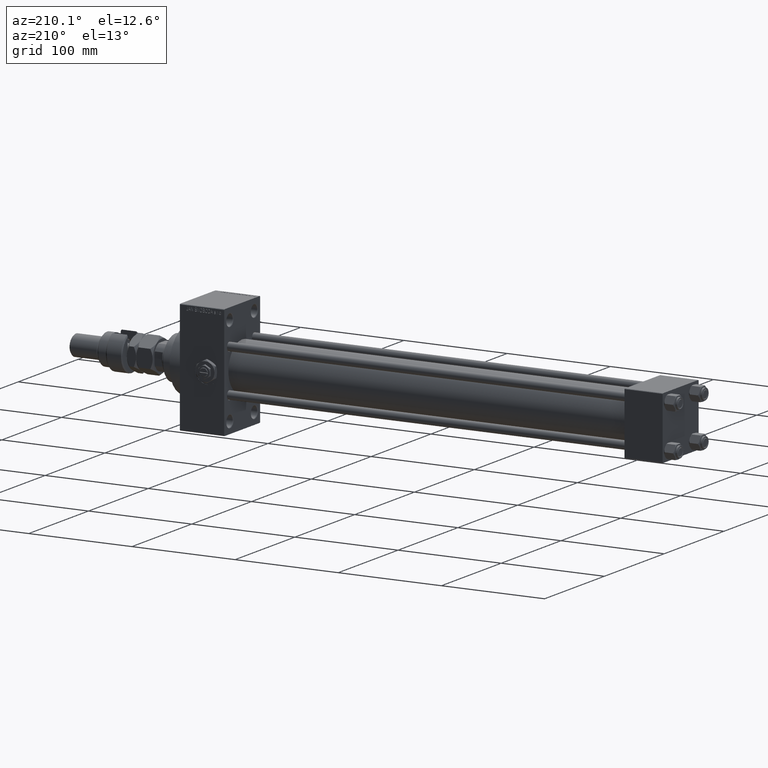
[diagram: clean part render]
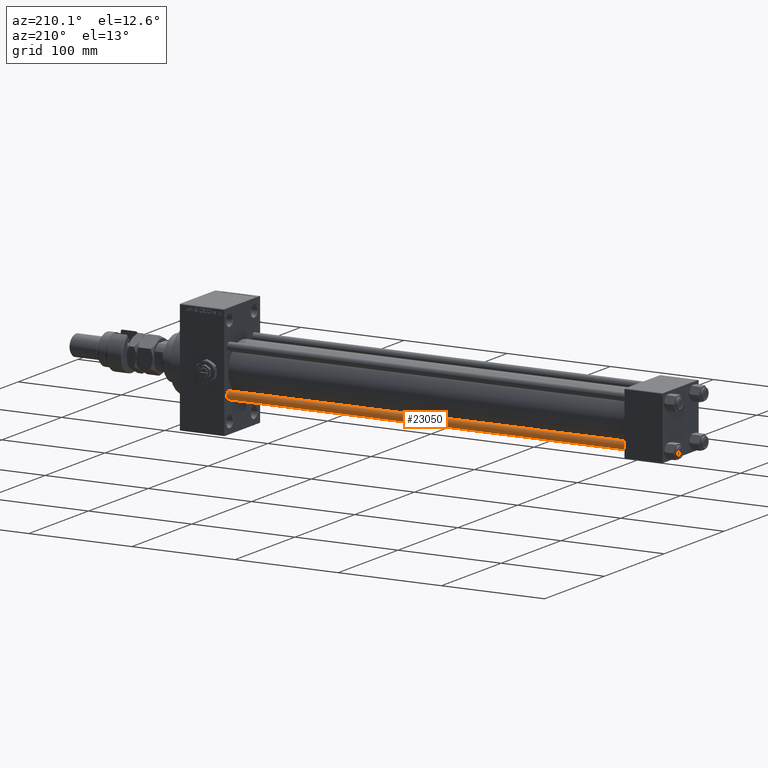
[diagram: same view with one face highlighted and labeled with its STEP entity id]
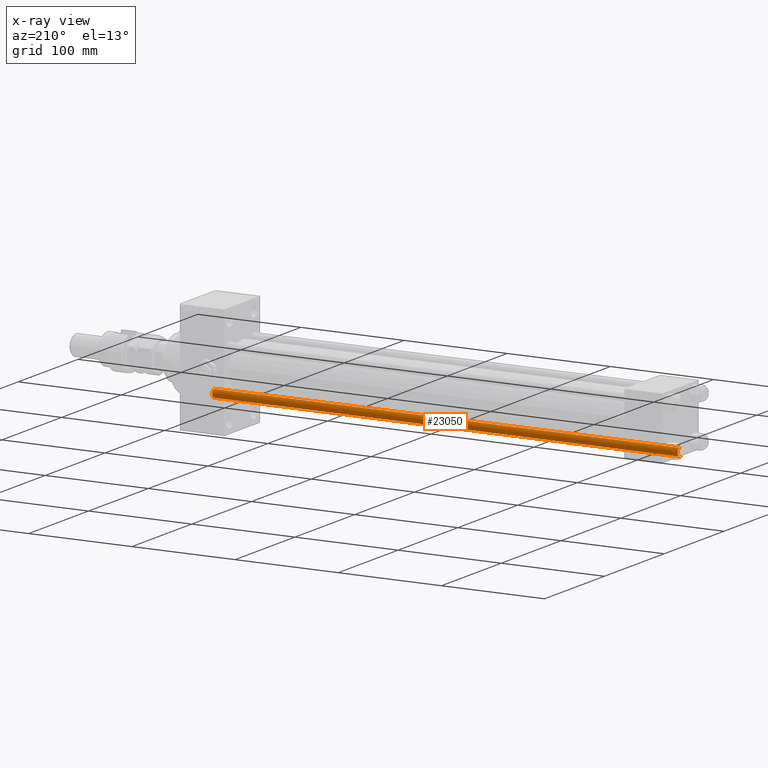
[diagram: x-ray of the same camera — body ghosted, the highlighted face saturated]
A machine part, auxiliary view. The second image highlights one B-rep face of the part: STEP entity #23050.
The next image is the same camera in x-ray: the body ghosted, the highlighted face saturated — about 0% of this face is hidden behind the body in this view.
In plain terms, the highlighted cylindrical surface (edge-blend (fillet) strip) has radius 4 mm, axis along (-1, -0, 0).
Its self-contained STEP definition (entity closure, byte-faithful):
#816 = CARTESIAN_POINT ( 'NONE',  ( 0.000000000000000000, 0.000000000000000000, 451.5000000000000000 ) ) ;
#2478 = CARTESIAN_POINT ( 'NONE',  ( -4.000000000000000000, 0.000000000000000000, 452.0000000000000000 ) ) ;
#2924 = AXIS2_PLACEMENT_3D ( 'NONE', #17563, #13108, #5495 ) ;
#4376 = CIRCLE ( 'NONE', #33685, 4.000000000000000000 ) ;
#5495 = DIRECTION ( 'NONE',  ( -1.000000000000000000, 0.000000000000000000, 0.000000000000000000 ) ) ;
#6218 = CARTESIAN_POINT ( 'NONE',  ( -4.000000000000000000, 0.000000000000000000, 0.5000000000000004441 ) ) ;
#7168 = CIRCLE ( 'NONE', #33141, 4.000000000000000000 ) ;
#8920 = DIRECTION ( 'NONE',  ( 1.000000000000000000, 0.000000000000000000, 0.000000000000000000 ) ) ;
#9687 = DIRECTION ( 'NONE',  ( 0.000000000000000000, 0.000000000000000000, -1.000000000000000000 ) ) ;
#11181 = ORIENTED_EDGE ( 'NONE', *, *, #24449, .T. ) ;
#13108 = DIRECTION ( 'NONE',  ( -0.000000000000000000, -0.000000000000000000, -1.000000000000000000 ) ) ;
#15436 = DIRECTION ( 'NONE',  ( -0.000000000000000000, -0.000000000000000000, -1.000000000000000000 ) ) ;
#16532 = CARTESIAN_POINT ( 'NONE',  ( -4.000000000000000000, 0.000000000000000000, 451.5000000000000000 ) ) ;
#17563 = CARTESIAN_POINT ( 'NONE',  ( 0.000000000000000000, 0.000000000000000000, 452.0000000000000000 ) ) ;
#19064 = DIRECTION ( 'NONE',  ( -0.000000000000000000, -0.000000000000000000, 1.000000000000000000 ) ) ;
#19891 = CARTESIAN_POINT ( 'NONE',  ( 4.000000000000000000, 4.898587196589412829E-16, 452.0000000000000000 ) ) ;
#21760 = CYLINDRICAL_SURFACE ( 'NONE', #2924, 4.000000000000000000 ) ;
#22217 = DIRECTION ( 'NONE',  ( 1.000000000000000000, 0.000000000000000000, 0.000000000000000000 ) ) ;
#23050 = ADVANCED_FACE ( 'NONE', ( #45349 ), #21760, .T. ) ;
#23229 = EDGE_CURVE ( 'NONE', #39205, #29436, #31177, .T. ) ;
#24449 = EDGE_CURVE ( 'NONE', #29436, #35802, #7168, .T. ) ;
#26586 = LINE ( 'NONE', #2478, #34845 ) ;
#29436 = VERTEX_POINT ( 'NONE', #49287 ) ;
#29831 = CARTESIAN_POINT ( 'NONE',  ( 0.000000000000000000, 0.000000000000000000, 0.5000000000000004441 ) ) ;
#30529 = DIRECTION ( 'NONE',  ( -0.000000000000000000, -0.000000000000000000, -1.000000000000000000 ) ) ;
#31177 = LINE ( 'NONE', #19891, #41409 ) ;
#33141 = AXIS2_PLACEMENT_3D ( 'NONE', #29831, #19064, #22217 ) ;
#33685 = AXIS2_PLACEMENT_3D ( 'NONE', #816, #9687, #8920 ) ;
#34321 = VERTEX_POINT ( 'NONE', #16532 ) ;
#34845 = VECTOR ( 'NONE', #30529, 1000.000000000000000 ) ;
#35220 = EDGE_CURVE ( 'NONE', #34321, #39205, #4376, .T. ) ;
#35802 = VERTEX_POINT ( 'NONE', #6218 ) ;
#37186 = ORIENTED_EDGE ( 'NONE', *, *, #35220, .T. ) ;
#39205 = VERTEX_POINT ( 'NONE', #41403 ) ;
#41403 = CARTESIAN_POINT ( 'NONE',  ( 4.000000000000000000, 4.898587196589412829E-16, 451.5000000000000000 ) ) ;
#41409 = VECTOR ( 'NONE', #15436, 1000.000000000000000 ) ;
#43878 = EDGE_LOOP ( 'NONE', ( #37186, #43944, #11181, #44774 ) ) ;
#43944 = ORIENTED_EDGE ( 'NONE', *, *, #23229, .T. ) ;
#44774 = ORIENTED_EDGE ( 'NONE', *, *, #46654, .F. ) ;
#45349 = FACE_OUTER_BOUND ( 'NONE', #43878, .T. ) ;
#46654 = EDGE_CURVE ( 'NONE', #34321, #35802, #26586, .T. ) ;
#49287 = CARTESIAN_POINT ( 'NONE',  ( 4.000000000000000000, 4.898587196589412829E-16, 0.5000000000000004441 ) ) ;